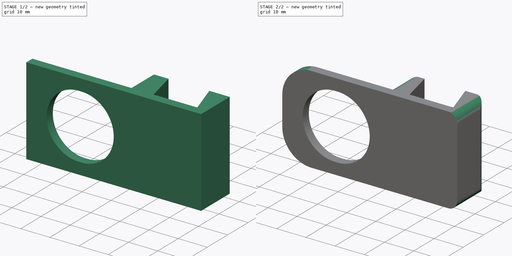
[diagram: build sequence overview — one tinted view per stage of 2, left to right]
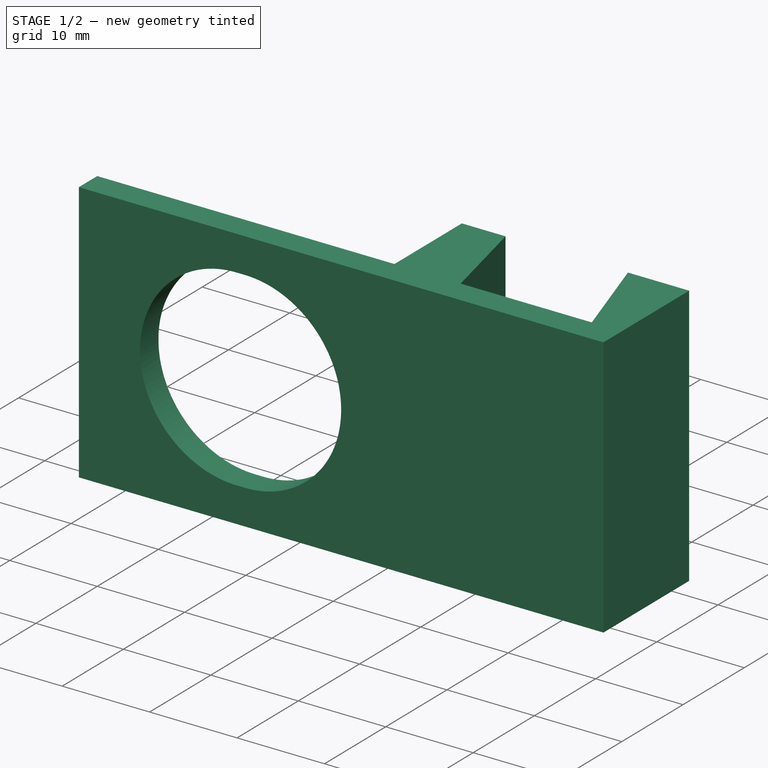
[diagram: stage 1 of 2 — iso view after this stage's code; geometry added in this stage tinted green]
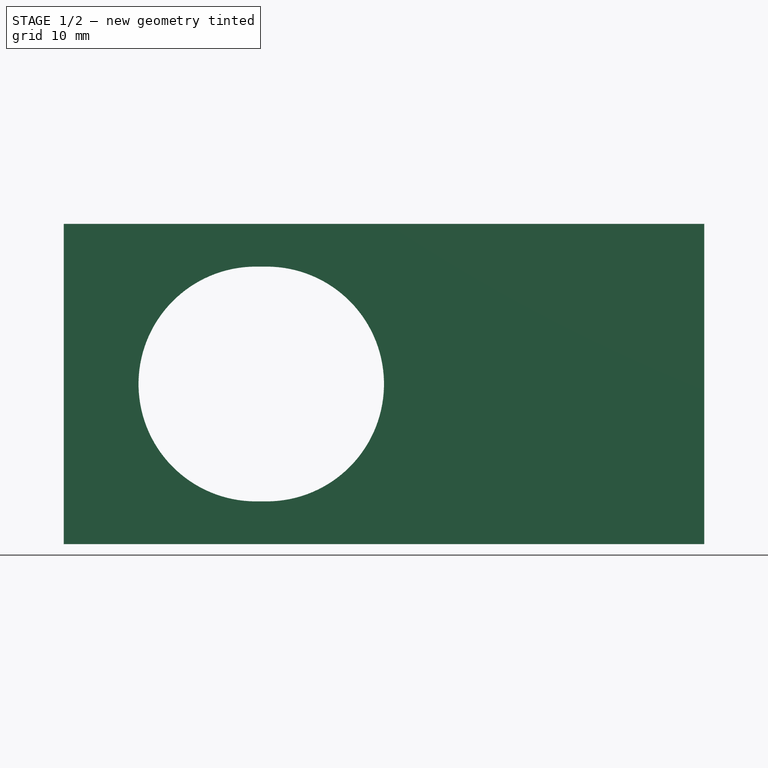
[diagram: stage 1 of 2 — front view after this stage's code; geometry added in this stage tinted green]
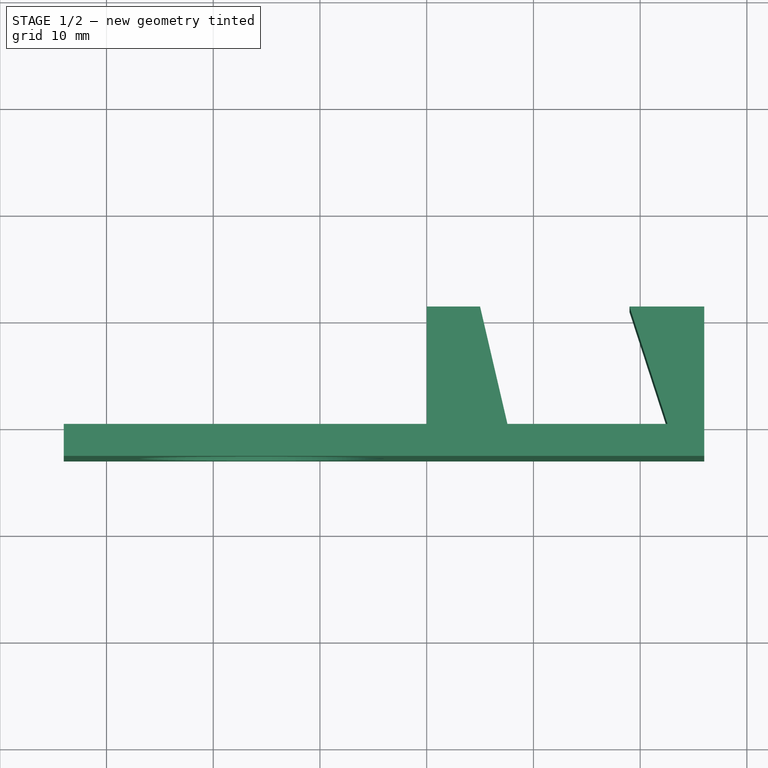
[diagram: stage 1 of 2 — top view after this stage's code; geometry added in this stage tinted green]
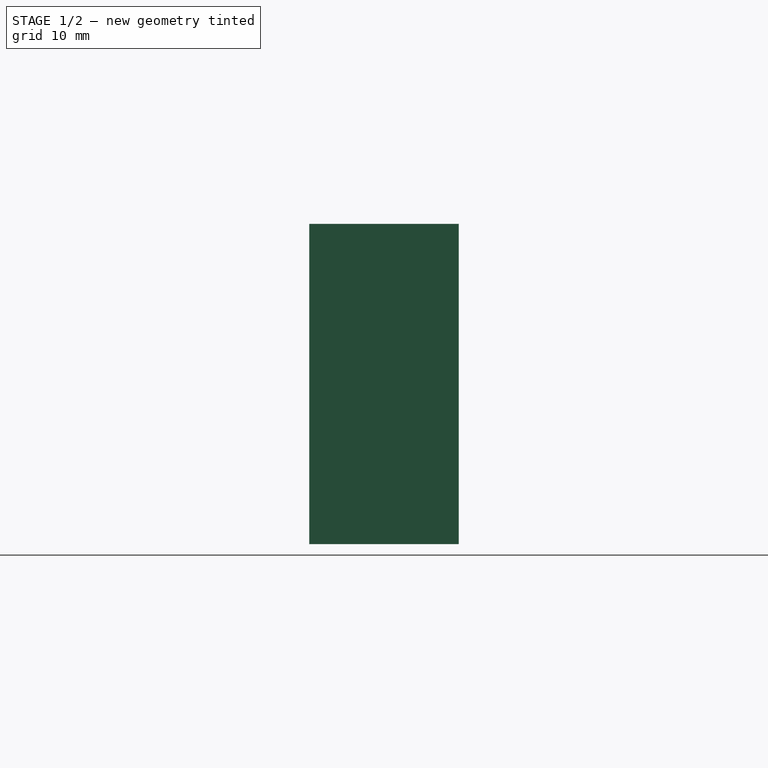
[diagram: stage 1 of 2 — right view after this stage's code; geometry added in this stage tinted green]
FCSTD DOCUMENT  (FreeCAD 0.17R13247 (Git))
Label: Dia5_SoporteMovil
License: CreativeCommons Attribution-ShareAlike
LicenseURL: http://creativecommons.org/licenses/by-sa/4.0/
objects: Sketcher::SketchObject×2, PartDesign::Fillet×2, PartDesign::Pad×1, PartDesign::Pocket×1, PartDesign::Body×1
note: 9 computed .brp shape members not serialized (recipe doc carries the construction recipe); baked Part::Feature solids carry a one-line shape summary decoded from their .brp

FEATURE [Sketcher::SketchObject] Sketch
  MapMode = 5
  Support = -> [XY_Plane]
  sketch-geometry (10):
    g0: LineSegment StartX=-34 StartY=-3 StartZ=0 EndX=26 EndY=-3 EndZ=0
    g1: LineSegment StartX=26 StartY=-3 StartZ=0 EndX=26 EndY=11 EndZ=0
    g2: LineSegment StartX=26 StartY=11 StartZ=0 EndX=19 EndY=11 EndZ=0
    g3: LineSegment StartX=19 StartY=11 StartZ=0 EndX=22.5657 EndY=0 EndZ=0
    g4: LineSegment StartX=22.5657 StartY=0 StartZ=0 EndX=7.56569 EndY=0 EndZ=0
    g5: LineSegment StartX=7.56569 StartY=0 StartZ=0 EndX=5 EndY=11 EndZ=0
    g6: LineSegment StartX=5 StartY=11 StartZ=0 EndX=0 EndY=11 EndZ=0
    g7: LineSegment StartX=0 StartY=11 StartZ=0 EndX=0 EndY=0 EndZ=0
    g8: LineSegment StartX=0 StartY=0 StartZ=0 EndX=-34 EndY=0 EndZ=0
    g9: LineSegment StartX=-34 StartY=0 StartZ=0 EndX=-34 EndY=-3 EndZ=0
  constraints (28):
    c: Horizontal(g0)
    c: Coincident(g0,g1)
    c: Vertical(g1)
    c: Coincident(g1,g2)
    c: Horizontal(g2)
    c: Coincident(g2,g3)
    c: Coincident(g3,g4)
    c: Horizontal(g4)
    c: Coincident(g4,g5)
    c: Coincident(g5,g6)
    c: Horizontal(g6)
    c: Coincident(g6,g7)
    c: Vertical(g7)
    c: Coincident(g7,g8)
    c: Horizontal(g8)
    c: Coincident(g8,g9)
    c: Coincident(g9,g0)
    c: Vertical(g9)
    c: PointOnObject(g5,g2)
    c: PointOnObject(g4,g8)
    c: DistanceY(g9,g9) = 3
    c: DistanceX(g4,g4) = 15
    c: DistanceX(g5,g2) = 14
    c: DistanceX(g2,g2) = 7
    c: DistanceX(g0,g0) = 60
    c: DistanceY(g0,g6) = 14
    c: Coincident(g7,g-1)
    c: DistanceX(g6,g6) = 5
FEATURE [PartDesign::Pad] Pad
  Length = 30
  Length2 = 100
  Profile = -> Sketch
  Refine = true
  Type = 0
FEATURE [Sketcher::SketchObject] Sketch001
  MapMode = 5
  Placement = pos=(0,0,0) rot=(0,0.707107,0.707107;3.14159rad)
  sketch-geometry (8):
    g0: ArcOfCircle CenterX=15 CenterY=15 CenterZ=0 NormalX=0 NormalY=0 NormalZ=1 AngleXU=0 Radius=11 StartAngle=1.5708 EndAngle=4.71239
    g1: ArcOfCircle CenterX=16 CenterY=15 CenterZ=0 NormalX=0 NormalY=0 NormalZ=1 AngleXU=0 Radius=11 StartAngle=4.71239 EndAngle=7.85398
    g2: LineSegment StartX=15 StartY=4 StartZ=0 EndX=16 EndY=4 EndZ=0
    g3: LineSegment StartX=15 StartY=26 StartZ=0 EndX=16 EndY=26 EndZ=0
    g4: LineSegment [constr] StartX=15.5 StartY=30 StartZ=0 EndX=15.5 EndY=0 EndZ=0
    g5: GeomPoint X=15.5 Y=15 Z=0
    g6: LineSegment [constr] StartX=0 StartY=15 StartZ=0 EndX=31 EndY=15 EndZ=0
    g7: GeomPoint X=27 Y=15 Z=0
  constraints (18):
    c: Tangent(g0,g3) = 1.5708
    c: Tangent(g0,g2) = -1.5708
    c: Tangent(g2,g1) = -1.5708
    c: Tangent(g3,g1) = 1.5708
    c: Horizontal(g2)
    c: Equal(g0,g1)
    c: PointOnObject(g4,g-1)
    c: Vertical(g4)
    c: PointOnObject(g5,g4)
    c: Symmetric(g4,g4,g5)
    c: Horizontal(g6)
    c: PointOnObject(g0,g6)
    c: Symmetric(g0,g1,g5)
    c: Symmetric(g6,g6,g5)
    c: DistanceY(g1,g4) = 4
    c: PointOnObject(g7,g6)
    c: PointOnObject(g7,g1)
    c: DistanceX(g7,g6) = 4
FEATURE [PartDesign::Pocket] Pocket
  BaseFeature = -> Pad
  Length = 5
  Length2 = 100
  Profile = -> Sketch001
  Refine = true
  Type = 0
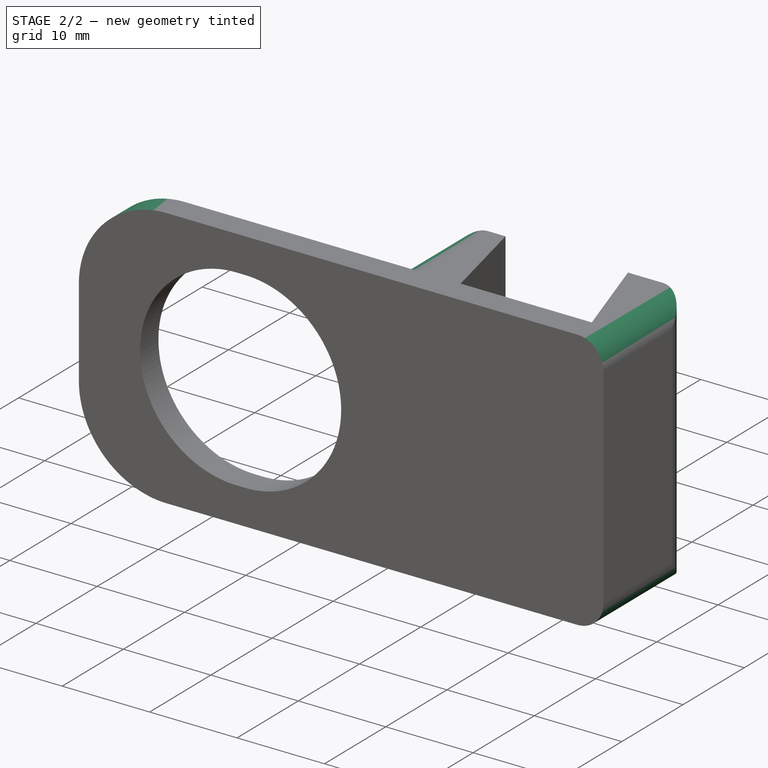
[diagram: stage 2 of 2 — iso view after this stage's code; geometry added in this stage tinted green]
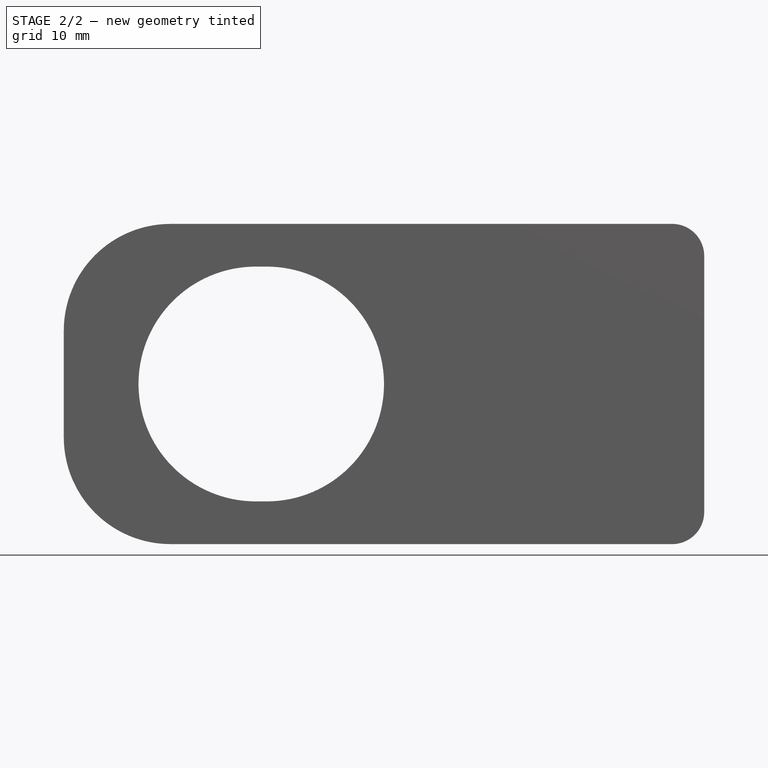
[diagram: stage 2 of 2 — front view after this stage's code; geometry added in this stage tinted green]
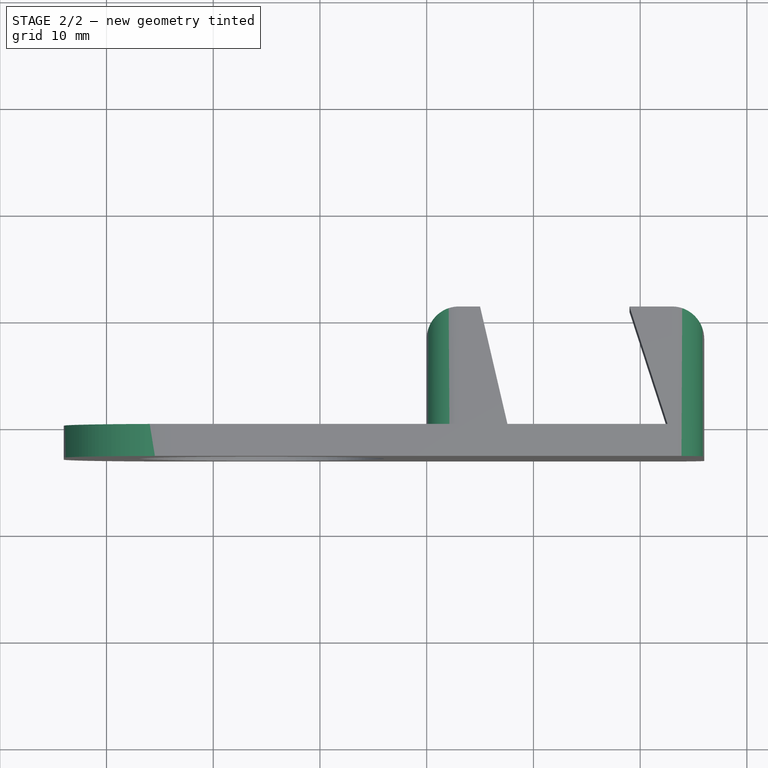
[diagram: stage 2 of 2 — top view after this stage's code; geometry added in this stage tinted green]
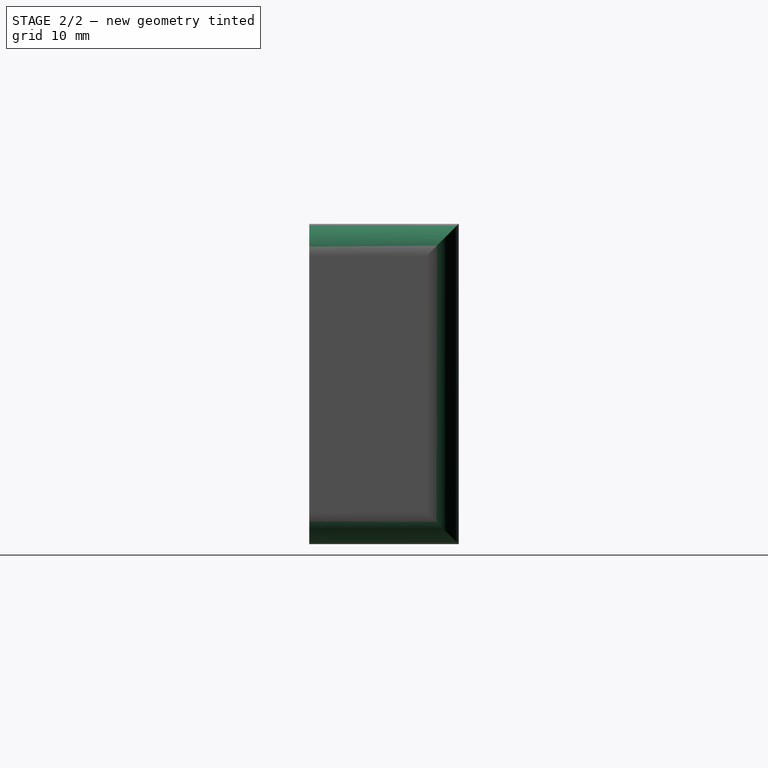
[diagram: stage 2 of 2 — right view after this stage's code; geometry added in this stage tinted green]
FEATURE [PartDesign::Fillet] Fillet
  Base = -> Pocket [Edge42,Edge26,Edge18,Edge12,Edge28,Edge20]
  BaseFeature = -> Pocket
  Radius = 3
FEATURE [PartDesign::Fillet] Fillet001
  Base = -> Fillet [Edge12,Edge24]
  BaseFeature = -> Fillet
  Radius = 10
FEATURE [PartDesign::Body] Body
  Group = -> [Sketch,Pad,Sketch001,Pocket,Fillet,Fillet001]
  Origin = -> Origin
  Tip = -> Fillet001
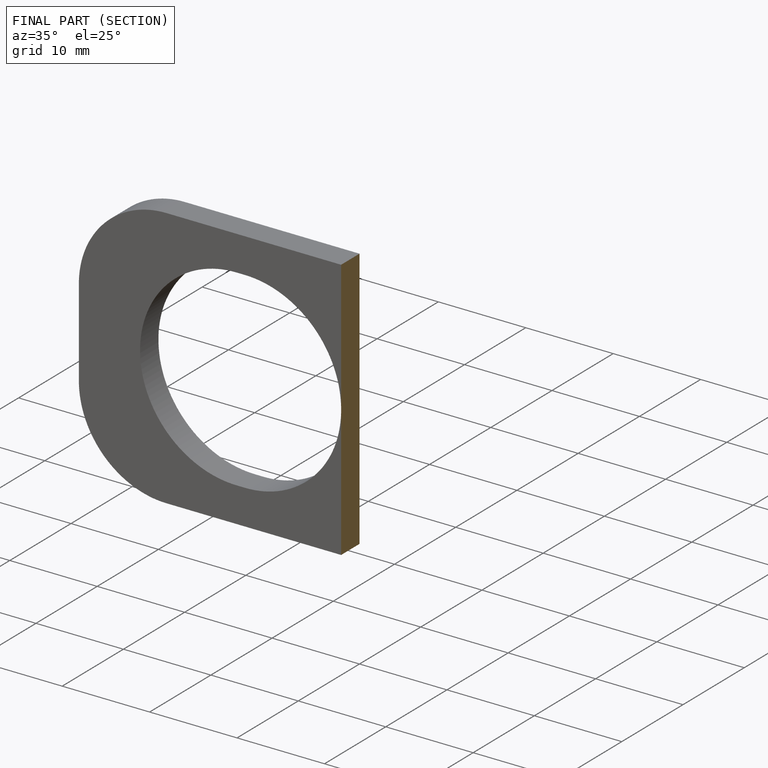
[diagram: finished part — half-section view (interior)]
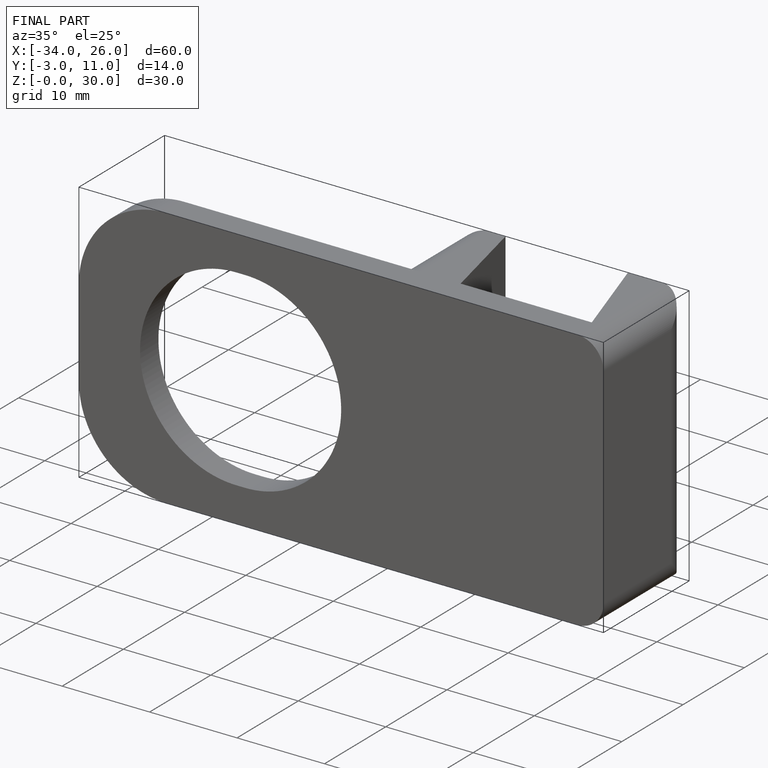
[diagram: finished part — iso view with bounding-box wireframe]
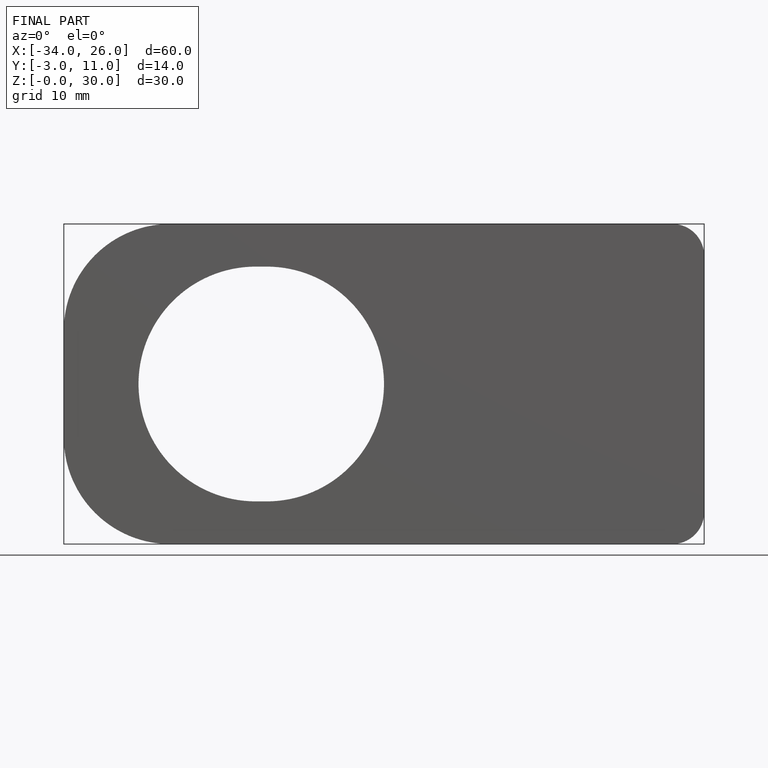
[diagram: finished part — front view with bounding-box wireframe]
